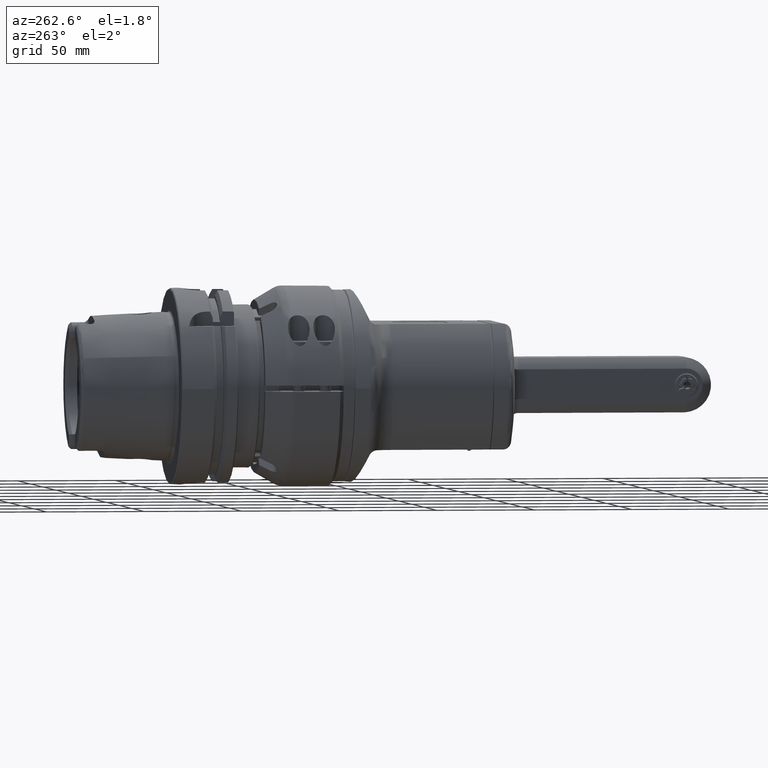
[diagram: clean part render]
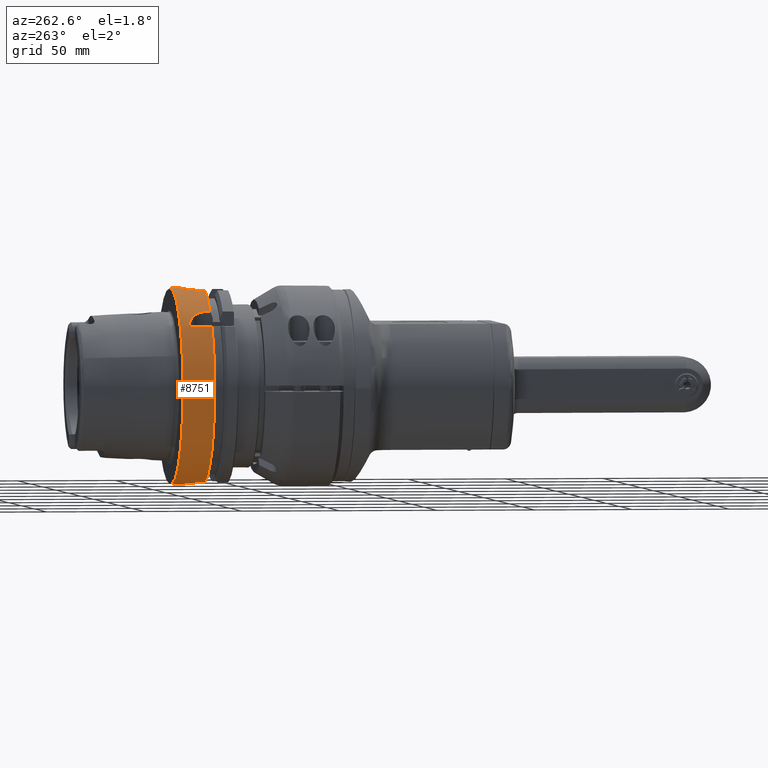
[diagram: same view with one face highlighted and labeled with its STEP entity id]
A machine part, auxiliary view. The second image highlights one B-rep face of the part: STEP entity #8751.
In plain terms, the highlighted cylindrical surface (bore or boss wall) has radius 50 mm, axis along (0, -1, 0).
Its self-contained STEP definition (entity closure, byte-faithful):
#275=FACE_BOUND('',#1510,.T.);
#949=FACE_OUTER_BOUND('',#1509,.T.);
#1509=EDGE_LOOP('',(#7497,#7498,#7499,#7500,#7501,#7502,#7503,#7504,#7505,
#7506,#7507,#7508,#7509,#7510,#7511,#7512,#7513,#7514,#7515));
#1510=EDGE_LOOP('',(#7516));
#1777=B_SPLINE_CURVE_WITH_KNOTS('',3,(#56314,#56315,#56316,#56317,#56318,
#56319,#56320,#56321,#56322,#56323,#56324,#56325),.UNSPECIFIED.,.F.,.F.,
(4,2,2,2,2,4),(-2.43960407431131E-12,0.372938236851937,0.745876473706314,
0.949211985781746,1.15254749785718,1.4744467776868),.UNSPECIFIED.);
#1778=B_SPLINE_CURVE_WITH_KNOTS('',3,(#56331,#56332,#56333,#56334,#56335,
#56336,#56337,#56338,#56339,#56340,#56341,#56342,#56343,#56344,#56345,#56346,
#56347,#56348),.UNSPECIFIED.,.F.,.F.,(4,2,2,2,2,2,2,2,4),(4.04676292476118E-14,
0.377795255890225,0.755590511780409,1.1333645980446,1.51113868430879,1.88891277057297,
2.26668685683716,2.64448211272735,3.02227736861753),.UNSPECIFIED.);
#1779=B_SPLINE_CURVE_WITH_KNOTS('',3,(#56356,#56357,#56358,#56359,#56360,
#56361,#56362,#56363,#56364,#56365),.UNSPECIFIED.,.F.,.F.,(4,2,2,2,4),(1.50996806152533,
1.88841920047208,2.26687033941884,2.64473353329375,3.02259672716866),
 .UNSPECIFIED.);
#1780=B_SPLINE_CURVE_WITH_KNOTS('',3,(#56369,#56370,#56371,#56372,#56373,
#56374,#56375,#56376,#56377,#56378),.UNSPECIFIED.,.F.,.F.,(4,2,2,2,4),(6.72795152923875E-14,
0.37808380192431,0.756167603848552,1.13439818677692,1.51262876970529),
 .UNSPECIFIED.);
#1781=B_SPLINE_CURVE_WITH_KNOTS('',3,(#56388,#56389,#56390,#56391,#56392,
#56393,#56394,#56395,#56396,#56397,#56398,#56399,#56400,#56401,#56402,#56403,
#56404,#56405,#56406,#56407,#56408,#56409,#56410,#56411,#56412,#56413,#56414,
#56415,#56416,#56417,#56418,#56419,#56420,#56421),.UNSPECIFIED.,.T.,.F.,
(4,2,2,2,2,2,2,2,2,2,2,2,2,2,2,2,4),(-3.01565744395019,-2.82717853293504,
-2.63869962191989,-2.45022135244126,-2.26174308296264,-2.07326481348402,
-1.88478654400539,-1.69630763299024,-1.50782872197509,-1.31934981095994,
-1.1308708999448,-0.942392630466171,-0.753914360987547,-0.565436091508923,
-0.376957822030299,-0.188478911015149,0.),.UNSPECIFIED.);
#2286=LINE('',#56287,#2917);
#2294=LINE('',#56313,#2925);
#2295=LINE('',#56329,#2926);
#2296=LINE('',#56350,#2927);
#2297=LINE('',#56354,#2928);
#2298=LINE('',#56380,#2929);
#2299=LINE('',#56383,#2930);
#2917=VECTOR('',#11622,2.11549883567801);
#2925=VECTOR('',#11634,11.7523966951103);
#2926=VECTOR('',#11637,1.752404735808);
#2927=VECTOR('',#11638,1.752404735808);
#2928=VECTOR('',#11641,1.752404735808);
#2929=VECTOR('',#11644,1.752404735809);
#2930=VECTOR('',#11647,50.);
#3372=CIRCLE('',#9603,50.);
#3373=CIRCLE('',#9604,50.);
#3374=CIRCLE('',#9605,50.);
#3375=CIRCLE('',#9606,50.);
#3376=CIRCLE('',#9607,50.);
#3377=CIRCLE('',#9608,50.);
#3378=CIRCLE('',#9609,50.);
#4092=VERTEX_POINT('',#56285);
#4093=VERTEX_POINT('',#56286);
#4101=VERTEX_POINT('',#56309);
#4102=VERTEX_POINT('',#56310);
#4103=VERTEX_POINT('',#56312);
#4104=VERTEX_POINT('',#56326);
#4105=VERTEX_POINT('',#56328);
#4106=VERTEX_POINT('',#56330);
#4107=VERTEX_POINT('',#56349);
#4108=VERTEX_POINT('',#56351);
#4109=VERTEX_POINT('',#56353);
#4110=VERTEX_POINT('',#56355);
#4111=VERTEX_POINT('',#56366);
#4112=VERTEX_POINT('',#56368);
#4113=VERTEX_POINT('',#56379);
#4114=VERTEX_POINT('',#56382);
#4115=VERTEX_POINT('',#56384);
#4116=VERTEX_POINT('',#56387);
#5263=EDGE_CURVE('',#4092,#4093,#2286,.T.);
#5273=EDGE_CURVE('',#4101,#4102,#3372,.T.);
#5274=EDGE_CURVE('',#4101,#4103,#2294,.T.);
#5275=EDGE_CURVE('',#4092,#4103,#1777,.T.);
#5276=EDGE_CURVE('',#4104,#4093,#3373,.T.);
#5277=EDGE_CURVE('',#4104,#4105,#2295,.T.);
#5278=EDGE_CURVE('',#4106,#4105,#1778,.T.);
#5279=EDGE_CURVE('',#4106,#4107,#2296,.T.);
#5280=EDGE_CURVE('',#4108,#4107,#3374,.T.);
#5281=EDGE_CURVE('',#4108,#4109,#2297,.T.);
#5282=EDGE_CURVE('',#4110,#4109,#1779,.T.);
#5283=EDGE_CURVE('',#4110,#4111,#3375,.T.);
#5284=EDGE_CURVE('',#4112,#4111,#1780,.T.);
#5285=EDGE_CURVE('',#4112,#4113,#2298,.T.);
#5286=EDGE_CURVE('',#4102,#4113,#3376,.T.);
#5287=EDGE_CURVE('',#4102,#4114,#2299,.T.);
#5288=EDGE_CURVE('',#4115,#4114,#3377,.T.);
#5289=EDGE_CURVE('',#4114,#4115,#3378,.T.);
#5290=EDGE_CURVE('',#4116,#4116,#1781,.T.);
#7497=ORIENTED_EDGE('',*,*,#5273,.F.);
#7498=ORIENTED_EDGE('',*,*,#5274,.T.);
#7499=ORIENTED_EDGE('',*,*,#5275,.F.);
#7500=ORIENTED_EDGE('',*,*,#5263,.T.);
#7501=ORIENTED_EDGE('',*,*,#5276,.F.);
#7502=ORIENTED_EDGE('',*,*,#5277,.T.);
#7503=ORIENTED_EDGE('',*,*,#5278,.F.);
#7504=ORIENTED_EDGE('',*,*,#5279,.T.);
#7505=ORIENTED_EDGE('',*,*,#5280,.F.);
#7506=ORIENTED_EDGE('',*,*,#5281,.T.);
#7507=ORIENTED_EDGE('',*,*,#5282,.F.);
#7508=ORIENTED_EDGE('',*,*,#5283,.T.);
#7509=ORIENTED_EDGE('',*,*,#5284,.F.);
#7510=ORIENTED_EDGE('',*,*,#5285,.T.);
#7511=ORIENTED_EDGE('',*,*,#5286,.F.);
#7512=ORIENTED_EDGE('',*,*,#5287,.T.);
#7513=ORIENTED_EDGE('',*,*,#5288,.F.);
#7514=ORIENTED_EDGE('',*,*,#5289,.F.);
#7515=ORIENTED_EDGE('',*,*,#5287,.F.);
#7516=ORIENTED_EDGE('',*,*,#5290,.T.);
#8342=CYLINDRICAL_SURFACE('',#9602,50.);
#8751=ADVANCED_FACE('',(#949,#275),#8342,.T.);
#9602=AXIS2_PLACEMENT_3D('',#56308,#11630,#11631);
#9603=AXIS2_PLACEMENT_3D('',#56311,#11632,#11633);
#9604=AXIS2_PLACEMENT_3D('',#56327,#11635,#11636);
#9605=AXIS2_PLACEMENT_3D('',#56352,#11639,#11640);
#9606=AXIS2_PLACEMENT_3D('',#56367,#11642,#11643);
#9607=AXIS2_PLACEMENT_3D('',#56381,#11645,#11646);
#9608=AXIS2_PLACEMENT_3D('',#56385,#11648,#11649);
#9609=AXIS2_PLACEMENT_3D('',#56386,#11650,#11651);
#11622=DIRECTION('',(-1.04536059038999E-6,-0.999999999999094,-8.48031499585527E-7));
#11630=DIRECTION('center_axis',(0.,-1.,0.));
#11631=DIRECTION('ref_axis',(1.,0.,0.));
#11632=DIRECTION('center_axis',(0.,-1.,0.));
#11633=DIRECTION('ref_axis',(-0.776595132614174,0.,0.629999999999979));
#11634=DIRECTION('',(-1.52646733164296E-7,0.999999999999971,-1.88166174768362E-7));
#11635=DIRECTION('center_axis',(0.,-1.,0.));
#11636=DIRECTION('ref_axis',(-0.199999999999994,0.,0.979795897113272));
#11637=DIRECTION('',(0.,1.,-6.5695296187E-15));
#11638=DIRECTION('',(0.,-1.,1.06242021566E-14));
#11639=DIRECTION('center_axis',(0.,-1.,0.));
#11640=DIRECTION('ref_axis',(0.219999999999995,0.,-0.975499871860577));
#11641=DIRECTION('',(0.,1.,1.37038330709E-14));
#11642=DIRECTION('center_axis',(0.,1.,0.));
#11643=DIRECTION('ref_axis',(0.02,0.,-0.999799979995999));
#11644=DIRECTION('',(0.,-1.,-1.37038330709001E-14));
#11645=DIRECTION('center_axis',(0.,-1.,0.));
#11646=DIRECTION('ref_axis',(-0.776595132614174,0.,0.629999999999979));
#11647=DIRECTION('',(0.,1.,0.));
#11648=DIRECTION('center_axis',(0.,1.,0.));
#11649=DIRECTION('ref_axis',(0.,-4.03896783473158E-29,1.));
#11650=DIRECTION('center_axis',(0.,1.,0.));
#11651=DIRECTION('ref_axis',(0.,-4.03896783473158E-29,1.));
#56285=CARTESIAN_POINT('',(-31.4999999999841,68.3631021407628,38.8297566307241));
#56286=CARTESIAN_POINT('',(-31.5000010664255,66.2475980093575,38.8297559102717));
#56287=CARTESIAN_POINT('',(-31.4999999999841,68.3631021407628,38.8297566307241));
#56308=CARTESIAN_POINT('Origin',(-4.060069640028E-12,56.62764574357,1.61332208073091E-20));
#56309=CARTESIAN_POINT('',(-38.8297553628639,66.2475951126294,31.5000011461844));
#56310=CARTESIAN_POINT('',(-50.0000000000041,66.2475952641887,-6.12321786251596E-15));
#56311=CARTESIAN_POINT('Origin',(-4.060069640028E-12,66.247595264189,1.61292383850241E-20));
#56312=CARTESIAN_POINT('',(-38.8297566307141,77.9999999999972,31.5000000000007));
#56313=CARTESIAN_POINT('',(-38.8297548367441,66.2476033048862,31.5000022114049));
#56314=CARTESIAN_POINT('Ctrl Pts',(-31.4999999999841,68.3631021407872,38.8297566307241));
#56315=CARTESIAN_POINT('Ctrl Pts',(-31.499999999981,69.6062295969664,38.8297566307265));
#56316=CARTESIAN_POINT('Ctrl Pts',(-31.7478638536999,70.9032298560246,38.6320743155519));
#56317=CARTESIAN_POINT('Ctrl Pts',(-32.670850768277,73.2213413873835,37.8547167431316));
#56318=CARTESIAN_POINT('Ctrl Pts',(-33.3424802708984,74.2428316697886,37.2720305584033));
#56319=CARTESIAN_POINT('Ctrl Pts',(-34.430997353879,75.4596547820777,36.2599154995303));
#56320=CARTESIAN_POINT('Ctrl Pts',(-34.8753539493002,75.8766305494428,35.8347517804275));
#56321=CARTESIAN_POINT('Ctrl Pts',(-35.7921541769779,76.5947204188212,34.9190699907218));
#56322=CARTESIAN_POINT('Ctrl Pts',(-36.2638982335853,76.8968755476647,34.4286683103101));
#56323=CARTESIAN_POINT('Ctrl Pts',(-37.3784500451856,77.5074692212597,33.224430179195));
#56324=CARTESIAN_POINT('Ctrl Pts',(-38.108821981964,77.8002395590736,32.3886894272231));
#56325=CARTESIAN_POINT('Ctrl Pts',(-38.8297566307123,77.9999999999979,31.4999999999995));
#56326=CARTESIAN_POINT('',(-10.0000000000041,66.2475952641894,48.9897948556649));
#56327=CARTESIAN_POINT('Origin',(-4.060069640028E-12,66.247595264189,1.61292383850241E-20));
#56328=CARTESIAN_POINT('',(-10.0000000000041,67.9999999999974,48.9897948556642));
#56329=CARTESIAN_POINT('',(-10.0000000000041,66.2475952641894,48.9897948556649));
#56330=CARTESIAN_POINT('',(9.99999999999594,67.9999999999974,48.9897948556642));
#56331=CARTESIAN_POINT('Ctrl Pts',(9.99999999999594,67.999999999997,48.9897948556636));
#56332=CARTESIAN_POINT('Ctrl Pts',(9.99999999999589,69.259317519631,48.9897948556636));
#56333=CARTESIAN_POINT('Ctrl Pts',(9.74762796248208,70.6001777716159,49.0433876618447));
#56334=CARTESIAN_POINT('Ctrl Pts',(8.72605417647976,73.0629200502975,49.2354150792771));
#56335=CARTESIAN_POINT('Ctrl Pts',(7.95703102191683,74.1851046018071,49.3709085101933));
#56336=CARTESIAN_POINT('Ctrl Pts',(6.18515424644688,75.956981377277,49.6240337638318));
#56337=CARTESIAN_POINT('Ctrl Pts',(5.0629486119722,76.7260434154446,49.7583347151863));
#56338=CARTESIAN_POINT('Ctrl Pts',(2.60013306081459,77.7476454223553,49.9476188647081));
#56339=CARTESIAN_POINT('Ctrl Pts',(1.25924695420994,77.999999999997,50.));
#56340=CARTESIAN_POINT('Ctrl Pts',(-1.25924695421806,77.999999999997,50.));
#56341=CARTESIAN_POINT('Ctrl Pts',(-2.60013306082271,77.7476454223553,49.9476188647081));
#56342=CARTESIAN_POINT('Ctrl Pts',(-5.06294861198032,76.7260434154446,49.7583347151863));
#56343=CARTESIAN_POINT('Ctrl Pts',(-6.185154246455,75.956981377277,49.6240337638318));
#56344=CARTESIAN_POINT('Ctrl Pts',(-7.95703102192495,74.1851046018071,49.3709085101933));
#56345=CARTESIAN_POINT('Ctrl Pts',(-8.72605417648788,73.0629200502975,49.2354150792771));
#56346=CARTESIAN_POINT('Ctrl Pts',(-9.7476279624902,70.6001777716159,49.0433876618447));
#56347=CARTESIAN_POINT('Ctrl Pts',(-10.0000000000041,69.259317519631,48.9897948556636));
#56348=CARTESIAN_POINT('Ctrl Pts',(-10.0000000000041,67.999999999997,48.9897948556636));
#56349=CARTESIAN_POINT('',(9.99999999999594,66.2475952641894,48.9897948556649));
#56350=CARTESIAN_POINT('',(9.99999999999594,67.9999999999974,48.9897948556642));
#56351=CARTESIAN_POINT('',(10.9999999999959,66.2475952641887,-48.7749935930251));
#56352=CARTESIAN_POINT('Origin',(-4.060069640028E-12,66.247595264189,1.61292383850241E-20));
#56353=CARTESIAN_POINT('',(10.9999999999959,67.9999999999977,-48.7749935930258));
#56354=CARTESIAN_POINT('',(10.9999999999959,66.2475952641887,-48.7749935930251));
#56355=CARTESIAN_POINT('',(0.99999999999594,77.9999999999972,-49.9899989997993));
#56356=CARTESIAN_POINT('Ctrl Pts',(0.999999999995943,77.999999999997,-49.9899989997999));
#56357=CARTESIAN_POINT('Ctrl Pts',(2.26125147049077,77.999999999997,-49.9647689238702));
#56358=CARTESIAN_POINT('Ctrl Pts',(3.6030926086428,77.746926740795,-49.8853600567865));
#56359=CARTESIAN_POINT('Ctrl Pts',(6.06650925177594,76.7240561053427,-49.6460359942126));
#56360=CARTESIAN_POINT('Ctrl Pts',(7.18842719108116,75.9544802180615,-49.4887060645895));
#56361=CARTESIAN_POINT('Ctrl Pts',(8.95850056251899,74.1828617854483,-49.1990678796224));
#56362=CARTESIAN_POINT('Ctrl Pts',(9.72667325975425,73.0616638721628,-49.0475663096823));
#56363=CARTESIAN_POINT('Ctrl Pts',(10.7475295248831,70.6001786915886,-48.8340306344483));
#56364=CARTESIAN_POINT('Ctrl Pts',(10.9999999999959,69.2595439795801,-48.7749935930288));
#56365=CARTESIAN_POINT('Ctrl Pts',(10.9999999999959,67.999999999997,-48.7749935930288));
#56366=CARTESIAN_POINT('',(-1.00000000000406,77.9999999999972,-49.9899989997993));
#56367=CARTESIAN_POINT('Origin',(-4.060069640028E-12,77.999999999997,1.61228729717166E-20));
#56368=CARTESIAN_POINT('',(-11.0000000000041,67.9999999999977,-48.7749935930258));
#56369=CARTESIAN_POINT('Ctrl Pts',(-11.0000000000041,67.999999999997,-48.7749935930288));
#56370=CARTESIAN_POINT('Ctrl Pts',(-11.000000000004,69.2602793397445,-48.7749935930288));
#56371=CARTESIAN_POINT('Ctrl Pts',(-10.7472375086764,70.6016427740415,-48.8341008360866));
#56372=CARTESIAN_POINT('Ctrl Pts',(-9.72529017934128,73.0642375286788,-49.0478464783375));
#56373=CARTESIAN_POINT('Ctrl Pts',(-8.95631855422919,74.1858170695028,-49.1994816343891));
#56374=CARTESIAN_POINT('Ctrl Pts',(-7.18547339439816,75.9566622293339,-49.4891324647498));
#56375=CARTESIAN_POINT('Ctrl Pts',(-6.06393709160395,76.7254391680062,-49.6463362271811));
#56376=CARTESIAN_POINT('Ctrl Pts',(-3.6016294564887,77.7472187213357,-49.8854517769764));
#56377=CARTESIAN_POINT('Ctrl Pts',(-2.26051643082298,77.999999999997,-49.9647836276047));
#56378=CARTESIAN_POINT('Ctrl Pts',(-1.00000000000406,77.999999999997,-49.9899989997999));
#56379=CARTESIAN_POINT('',(-11.0000000000041,66.2475952641887,-48.7749935930251));
#56380=CARTESIAN_POINT('',(-11.0000000000041,67.9999999999977,-48.7749935930258));
#56381=CARTESIAN_POINT('Origin',(-4.060069640028E-12,66.247595264189,1.61292383850241E-20));
#56382=CARTESIAN_POINT('',(-50.0000000000041,82.5,-6.12321786251596E-15));
#56383=CARTESIAN_POINT('',(-50.0000000000041,56.62764574357,-6.12321786251596E-15));
#56384=CARTESIAN_POINT('',(-4.060069640028E-12,82.4999999999978,49.9999999999991));
#56385=CARTESIAN_POINT('Origin',(-4.060069640028E-12,82.5,1.6123155699465E-20));
#56386=CARTESIAN_POINT('Origin',(-4.060069640028E-12,82.5,1.6123155699465E-20));
#56387=CARTESIAN_POINT('',(49.7493718553259,75.9999999999958,5.0000000000004));
#56388=CARTESIAN_POINT('Ctrl Pts',(49.7493718553269,75.999999999996,4.99999999999999));
#56389=CARTESIAN_POINT('Ctrl Pts',(49.7493718553269,76.6282630367132,4.99999999999999));
#56390=CARTESIAN_POINT('Ctrl Pts',(49.7624993987057,77.2981142911871,4.87435544587054));
#56391=CARTESIAN_POINT('Ctrl Pts',(49.8098541153658,78.5298857522787,4.36395693611591));
#56392=CARTESIAN_POINT('Ctrl Pts',(49.843390866092,79.0918419046211,3.97922590724032));
#56393=CARTESIAN_POINT('Ctrl Pts',(49.9062957431432,79.9792243970163,3.09184341484516));
#56394=CARTESIAN_POINT('Ctrl Pts',(49.9397591808565,80.3639566043167,2.52988660036718));
#56395=CARTESIAN_POINT('Ctrl Pts',(49.9869460568255,80.8743559937749,1.29811292154946));
#56396=CARTESIAN_POINT('Ctrl Pts',(49.9999999999959,80.999999999996,0.628260898262075));
#56397=CARTESIAN_POINT('Ctrl Pts',(49.9999999999959,80.999999999996,-0.628260898262086));
#56398=CARTESIAN_POINT('Ctrl Pts',(49.9869460568255,80.8743559937749,-1.29811292154947));
#56399=CARTESIAN_POINT('Ctrl Pts',(49.9397591808565,80.3639566043167,-2.52988660036719));
#56400=CARTESIAN_POINT('Ctrl Pts',(49.9062957431432,79.9792243970163,-3.09184341484517));
#56401=CARTESIAN_POINT('Ctrl Pts',(49.843390866092,79.0918419046211,-3.97922590724033));
#56402=CARTESIAN_POINT('Ctrl Pts',(49.8098541153658,78.5298857522787,-4.36395693611592));
#56403=CARTESIAN_POINT('Ctrl Pts',(49.7624993987057,77.2981142911871,-4.87435544587056));
#56404=CARTESIAN_POINT('Ctrl Pts',(49.7493718553269,76.6282630367132,-5.00000000000001));
#56405=CARTESIAN_POINT('Ctrl Pts',(49.7493718553269,75.3717369632788,-5.00000000000001));
#56406=CARTESIAN_POINT('Ctrl Pts',(49.7624993987057,74.7018857088049,-4.87435544587055));
#56407=CARTESIAN_POINT('Ctrl Pts',(49.8098541153658,73.4701142477133,-4.36395693611592));
#56408=CARTESIAN_POINT('Ctrl Pts',(49.843390866092,72.9081580953709,-3.97922590724033));
#56409=CARTESIAN_POINT('Ctrl Pts',(49.9062957431432,72.0207756029757,-3.09184341484517));
#56410=CARTESIAN_POINT('Ctrl Pts',(49.9397591808565,71.6360433956753,-2.52988660036719));
#56411=CARTESIAN_POINT('Ctrl Pts',(49.9869460568255,71.1256440062171,-1.29811292154947));
#56412=CARTESIAN_POINT('Ctrl Pts',(49.9999999999959,70.999999999996,-0.628260898262088));
#56413=CARTESIAN_POINT('Ctrl Pts',(49.9999999999959,70.999999999996,0.628260898262072));
#56414=CARTESIAN_POINT('Ctrl Pts',(49.9869460568255,71.1256440062171,1.29811292154945));
#56415=CARTESIAN_POINT('Ctrl Pts',(49.9397591808565,71.6360433956753,2.52988660036718));
#56416=CARTESIAN_POINT('Ctrl Pts',(49.9062957431432,72.0207756029757,3.09184341484516));
#56417=CARTESIAN_POINT('Ctrl Pts',(49.843390866092,72.9081580953709,3.97922590724032));
#56418=CARTESIAN_POINT('Ctrl Pts',(49.8098541153658,73.4701142477133,4.3639569361159));
#56419=CARTESIAN_POINT('Ctrl Pts',(49.7624993987057,74.7018857088049,4.87435544587054));
#56420=CARTESIAN_POINT('Ctrl Pts',(49.7493718553269,75.3717369632788,4.99999999999999));
#56421=CARTESIAN_POINT('Ctrl Pts',(49.7493718553269,75.999999999996,4.99999999999999));